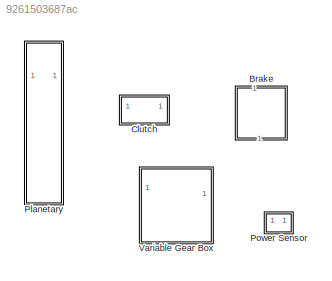
MODEL slx_9261503687ac
KIND library
CONFIG SolverName = VariableStepAuto
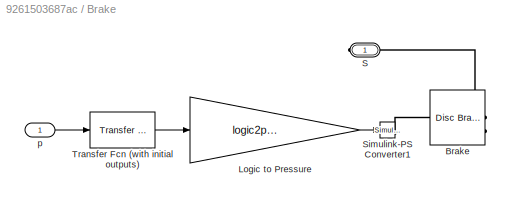
BLOCK [SubSystem] Brake
  NameLocation = left
BLOCK [Reference] Brake/Brake  REF=sdl_lib/Brakes & Detents/Rotational/Disc Brake
  SourceBlock = sdl_lib/Brakes & Detents/Rotational/Disc Brake
  SourceType = Disc Brake
BLOCK [Gain] Brake/Logic to Pressure
  Gain = logic2pressure
BLOCK [PMIOPort] Brake/S
  Side = Right
BLOCK [Reference] Brake/Simulink-PS Converter1  REF=nesl_utility/Simulink-PS
Converter
  SourceBlock = nesl_utility/Simulink-PS\nConverter
  SourceType = Simulink-PS\nConverter
BLOCK [Reference] Brake/Transfer Fcn (with initial outputs)  REF=simulink_extras/Additional
Linear/Transfer Fcn
(with initial outputs)
  SourceBlock = simulink_extras/Additional\nLinear/Transfer Fcn\n(with initial outputs)
  SourceType = Transfer Function with Initial Outputs
BLOCK [Inport] Brake/p
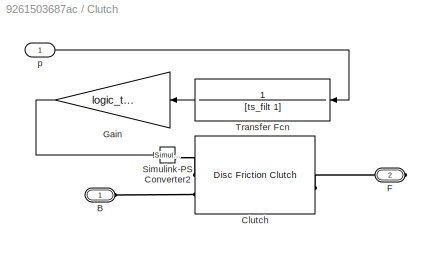
BLOCK [SubSystem] Clutch
  PortSchema = {"entries":[{"content":{"sides":[{"content":{"connectorIds":["LConn1"]},"type":"ConnectorPlacement.EquallySpacedRectSide","uuid":"287225fd-8891-4f7c-8f3e-4b5002d781cc"},{"content":{"connectorIds":["RConn1"],"side":"RIGHT"},"type":"ConnectorPlacement.EquallySpacedRectSide","uuid":"52798522-6832-475b-a38f-3591fd9a4abf"},{"content":{"connectorIds":["In1"],"side":"TOP"},"type":"ConnectorPlacement.Equa...<+250ch>
BLOCK [PMIOPort] Clutch/B
  Side = Left
BLOCK [Reference] Clutch/Clutch  REF=sdl_lib/Clutches/Disc Friction Clutch
  SourceBlock = sdl_lib/Clutches/Disc Friction Clutch
  SourceType = Disc Friction Clutch
BLOCK [PMIOPort] Clutch/F
  Port = 2
  Side = Right
BLOCK [Gain] Clutch/Gain
  Gain = logic_to_pr_gain
BLOCK [Reference] Clutch/Simulink-PS Converter2  REF=nesl_utility/Simulink-PS
Converter
  NameLocation = top
  SourceBlock = nesl_utility/Simulink-PS\nConverter
  SourceType = Simulink-PS\nConverter
BLOCK [TransferFcn] Clutch/Transfer Fcn
  Denominator = [ts_filt 1]
  Numerator = 1
BLOCK [Inport] Clutch/p
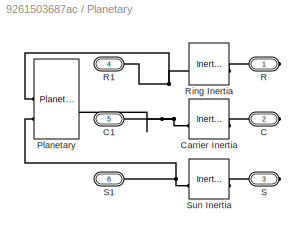
BLOCK [SubSystem] Planetary
BLOCK [PMIOPort] Planetary/C    
  Port = 2
  Side = Right
BLOCK [PMIOPort] Planetary/C1
  Port = 5
  Side = Left
BLOCK [Reference] Planetary/Carrier Inertia  REF=fl_lib/Mechanical/Rotational Elements/Inertia
  SourceBlock = fl_lib/Mechanical/Rotational Elements/Inertia
  SourceType = Inertia
BLOCK [Reference] Planetary/Planetary  REF=sdl_lib/Gears/Planetary Gear
  SourceBlock = sdl_lib/Gears/Planetary Gear
  SourceType = Planetary Gear
BLOCK [PMIOPort] Planetary/R    
  Side = Right
BLOCK [PMIOPort] Planetary/R1
  Port = 4
  Side = Left
BLOCK [Reference] Planetary/Ring Inertia  REF=fl_lib/Mechanical/Rotational Elements/Inertia
  SourceBlock = fl_lib/Mechanical/Rotational Elements/Inertia
  SourceType = Inertia
BLOCK [PMIOPort] Planetary/S    
  Port = 3
  Side = Right
BLOCK [PMIOPort] Planetary/S1
  Port = 6
  Side = Left
BLOCK [Reference] Planetary/Sun Inertia  REF=fl_lib/Mechanical/Rotational Elements/Inertia
  SourceBlock = fl_lib/Mechanical/Rotational Elements/Inertia
  SourceType = Inertia
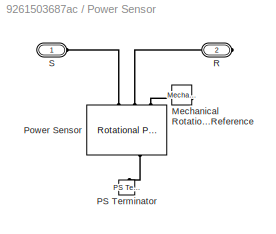
BLOCK [SubSystem] Power Sensor
BLOCK [Reference] Power Sensor/Mechanical Rotational Reference  REF=fl_lib/Mechanical/Rotational Elements/Mechanical
Rotational Reference
  NameLocation = top
  SourceBlock = fl_lib/Mechanical/Rotational Elements/Mechanical\nRotational Reference
  SourceType = Mechanical\nRotational Reference
BLOCK [Reference] Power Sensor/PS Terminator  REF=fl_lib/Physical Signals/Sinks/PS Terminator
  NameLocation = left
  SourceBlock = fl_lib/Physical Signals/Sinks/PS Terminator
  SourceType = PS Terminator
BLOCK [Reference] Power Sensor/Power Sensor  REF=sdl_lib/Sensors/Rotational Power
Sensor
  NameLocation = left
  SourceBlock = sdl_lib/Sensors/Rotational Power\nSensor
  SourceType = Rotational Power\nSensor
BLOCK [PMIOPort] Power Sensor/R
  Port = 2
  Side = Right
BLOCK [PMIOPort] Power Sensor/S
  Side = Left
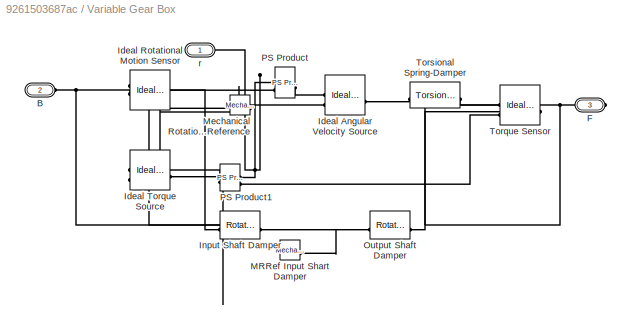
BLOCK [SubSystem] Variable Gear Box
BLOCK [PMIOPort] Variable Gear Box/B
  Port = 2
  Side = Left
BLOCK [PMIOPort] Variable Gear Box/F
  Port = 3
  Side = Right
BLOCK [Reference] Variable Gear Box/Ideal Angular Velocity Source  REF=fl_lib/Mechanical/Mechanical Sources/Ideal Angular
Velocity Source
  SourceBlock = fl_lib/Mechanical/Mechanical Sources/Ideal Angular\nVelocity Source
  SourceType = Ideal Angular\nVelocity Source
BLOCK [Reference] Variable Gear Box/Ideal Rotational Motion Sensor  REF=fl_lib/Mechanical/Mechanical Sensors/Ideal Rotational
Motion Sensor
  SourceBlock = fl_lib/Mechanical/Mechanical Sensors/Ideal Rotational\nMotion Sensor
  SourceType = Ideal Rotational\nMotion Sensor
BLOCK [Reference] Variable Gear Box/Ideal Torque Source  REF=fl_lib/Mechanical/Mechanical Sources/Ideal Torque Source
  SourceBlock = fl_lib/Mechanical/Mechanical Sources/Ideal Torque Source
  SourceType = Ideal Torque Source
BLOCK [Reference] Variable Gear Box/Input Shaft Damper  REF=fl_lib/Mechanical/Rotational Elements/Rotational Damper
  SourceBlock = fl_lib/Mechanical/Rotational Elements/Rotational Damper
  SourceType = Rotational Damper
BLOCK [Reference] Variable Gear Box/MRRef Input Shart Damper  REF=fl_lib/Mechanical/Rotational Elements/Mechanical
Rotational Reference
  NameLocation = top
  SourceBlock = fl_lib/Mechanical/Rotational Elements/Mechanical\nRotational Reference
  SourceType = Mechanical\nRotational Reference
BLOCK [Reference] Variable Gear Box/Mechanical Rotational Reference  REF=fl_lib/Mechanical/Rotational Elements/Mechanical
Rotational Reference
  NameLocation = top
  SourceBlock = fl_lib/Mechanical/Rotational Elements/Mechanical\nRotational Reference
  SourceType = Mechanical\nRotational Reference
BLOCK [Reference] Variable Gear Box/Output Shaft Damper  REF=fl_lib/Mechanical/Rotational Elements/Rotational Damper
  SourceBlock = fl_lib/Mechanical/Rotational Elements/Rotational Damper
  SourceType = Rotational Damper
BLOCK [Reference] Variable Gear Box/PS Product  REF=fl_lib/Physical Signals/Functions/PS Product
  SourceBlock = fl_lib/Physical Signals/Functions/PS Product
  SourceType = PS Product
BLOCK [Reference] Variable Gear Box/PS Product1  REF=fl_lib/Physical Signals/Functions/PS Product
  SourceBlock = fl_lib/Physical Signals/Functions/PS Product
  SourceType = PS Product
BLOCK [Reference] Variable Gear Box/Torque Sensor  REF=fl_lib/Mechanical/Mechanical Sensors/Ideal Torque Sensor
  NameLocation = top
  SourceBlock = fl_lib/Mechanical/Mechanical Sensors/Ideal Torque Sensor
  SourceType = Ideal Torque Sensor
BLOCK [Reference] Variable Gear Box/Torsional Spring-Damper  REF=sdl_lib/Couplings & Drives/Torsional
Spring-Damper
  SourceBlock = sdl_lib/Couplings & Drives/Torsional\nSpring-Damper
  SourceType = Torsional\nSpring-Damper
BLOCK [PMIOPort] Variable Gear Box/r
  Side = Left
LINE Brake/Logic to Pressure:1 -> Brake/Simulink-PS Converter1:1
LINE Brake/Transfer Fcn (with initial outputs):1 -> Brake/Logic to Pressure:1
LINE Brake/p:1 -> Brake/Transfer Fcn (with initial outputs):1
LINE Clutch/Gain:1 -> Clutch/Simulink-PS Converter2:1
LINE Clutch/Transfer Fcn:1 -> Clutch/Gain:1
LINE Clutch/p:1 -> Clutch/Transfer Fcn:1
PLINE Brake/Brake:LConn1 -- Brake/Simulink-PS Converter1:RConn1
PLINE Brake/Brake:LConn2 -- Brake/S:RConn1
PLINE Clutch/B:RConn1 -- Clutch/Clutch:LConn2
PLINE Clutch/Clutch:LConn1 -- Clutch/Simulink-PS Converter2:RConn1
PLINE Clutch/Clutch:RConn1 -- Clutch/F:RConn1
PLINE Planetary/C    :RConn1 -- Planetary/Carrier Inertia:LConn1
PNET net1: Planetary/C1:RConn1 -- Planetary/Carrier Inertia:RConn1 -- Planetary/Planetary:LConn1
PNET net2: Planetary/Planetary:RConn1 -- Planetary/R1:RConn1 -- Planetary/Ring Inertia:RConn1
PNET net3: Planetary/Planetary:RConn2 -- Planetary/S1:RConn1 -- Planetary/Sun Inertia:RConn1
PLINE Planetary/R    :RConn1 -- Planetary/Ring Inertia:LConn1
PLINE Planetary/S    :RConn1 -- Planetary/Sun Inertia:LConn1
PLINE Power Sensor/Mechanical Rotational Reference:LConn1 -- Power Sensor/Power Sensor:LConn3
PLINE Power Sensor/PS Terminator:LConn1 -- Power Sensor/Power Sensor:RConn1
PLINE Power Sensor/Power Sensor:LConn1 -- Power Sensor/S:RConn1
PLINE Power Sensor/Power Sensor:LConn2 -- Power Sensor/R:RConn1
PNET net4: Variable Gear Box/B:RConn1 -- Variable Gear Box/Ideal Rotational Motion Sensor:LConn1 -- Variable Gear Box/Ideal Torque Source:LConn1 -- Variable Gear Box/Input Shaft Damper:LConn1
PNET net5: Variable Gear Box/F:RConn1 -- Variable Gear Box/Output Shaft Damper:LConn1 -- Variable Gear Box/Torque Sensor:LConn1
PLINE Variable Gear Box/Ideal Angular Velocity Source:LConn1 -- Variable Gear Box/Torsional Spring-Damper:LConn1
PLINE Variable Gear Box/Ideal Angular Velocity Source:RConn1 -- Variable Gear Box/PS Product:RConn1
PNET net6: Variable Gear Box/Ideal Angular Velocity Source:RConn2 -- Variable Gear Box/Ideal Rotational Motion Sensor:RConn1 -- Variable Gear Box/Ideal Torque Source:RConn2 -- Variable Gear Box/Mechanical Rotational Reference:LConn1
PLINE Variable Gear Box/Ideal Rotational Motion Sensor:RConn2 -- Variable Gear Box/PS Product:LConn2
PLINE Variable Gear Box/Ideal Torque Source:RConn1 -- Variable Gear Box/PS Product1:RConn1
PNET net7: Variable Gear Box/Input Shaft Damper:RConn1 -- Variable Gear Box/MRRef Input Shart Damper:LConn1 -- Variable Gear Box/Output Shaft Damper:RConn1
PNET net8: Variable Gear Box/PS Product1:LConn1 -- Variable Gear Box/PS Product:LConn1 -- Variable Gear Box/r:RConn1
PLINE Variable Gear Box/PS Product1:LConn2 -- Variable Gear Box/Torque Sensor:RConn2
PLINE Variable Gear Box/Torque Sensor:RConn1 -- Variable Gear Box/Torsional Spring-Damper:RConn1
note: PNET lines group multi-terminal physical nets as a canonical sorted terminal list (undirected conserving connections); 2-terminal nets keep the pairwise PLINE form
